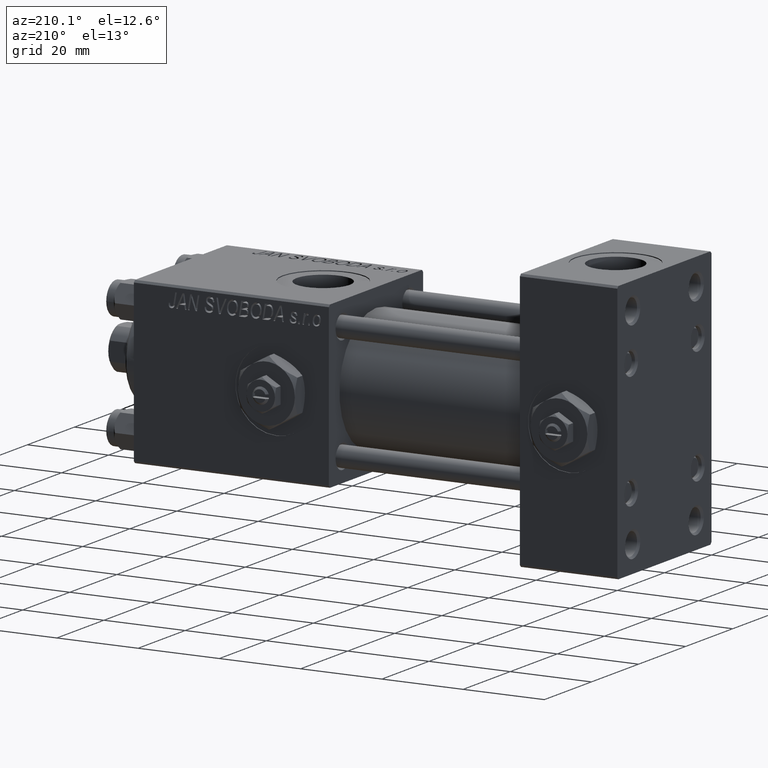
[diagram: clean part render]
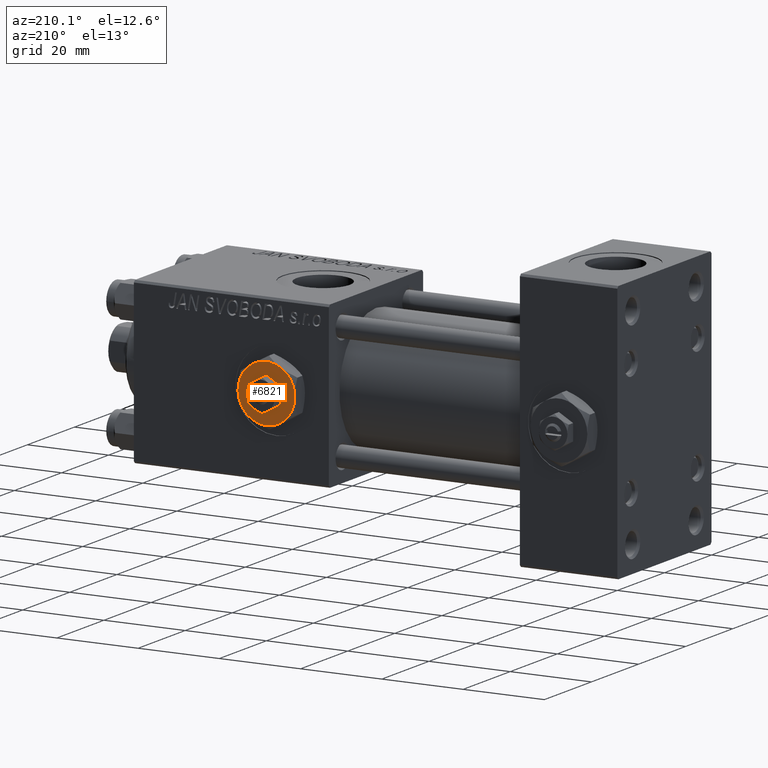
[diagram: same view with one face highlighted and labeled with its STEP entity id]
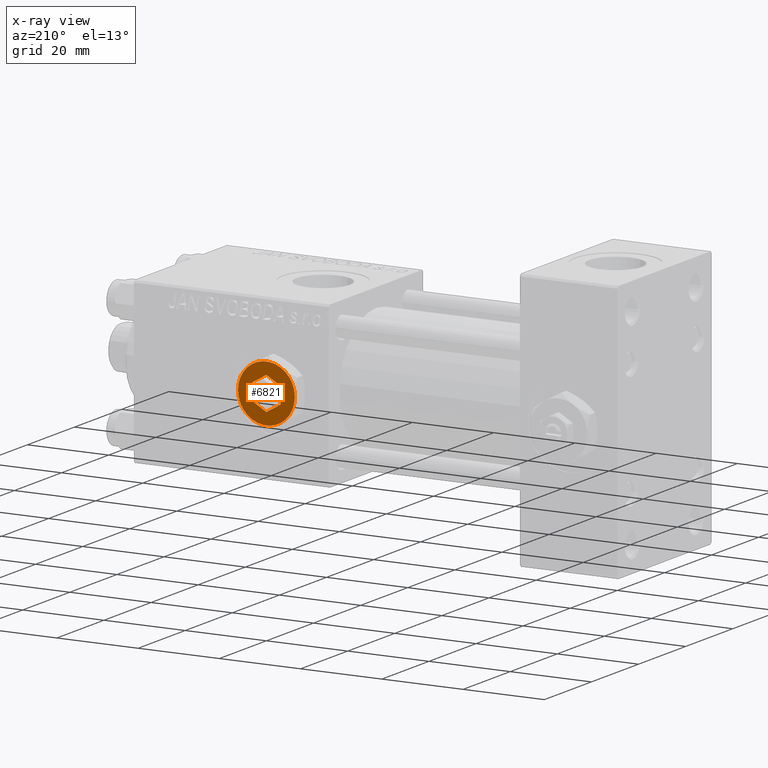
[diagram: x-ray of the same camera — body ghosted, the highlighted face saturated]
A machine part, auxiliary view. The second image highlights one B-rep face of the part: STEP entity #6821.
The next image is the same camera in x-ray: the body ghosted, the highlighted face saturated — about 0% of this face is hidden behind the body in this view.
In plain terms, the highlighted planar face has unit normal (0, 1, 0).
Its self-contained STEP definition (entity closure, byte-faithful):
#95 = VERTEX_POINT ( 'NONE', #45975 ) ;
#382 = VECTOR ( 'NONE', #1438, 1000.000000000000114 ) ;
#509 = CARTESIAN_POINT ( 'NONE',  ( -3.499999999999998668, -2.020725942163689837, 4.299999999999999822 ) ) ;
#547 = CARTESIAN_POINT ( 'NONE',  ( -7.000000000000001776, -2.253471898105739040E-15, 4.299999999999999822 ) ) ;
#961 = VECTOR ( 'NONE', #34745, 1000.000000000000114 ) ;
#1143 = VECTOR ( 'NONE', #48527, 1000.000000000000227 ) ;
#1438 = DIRECTION ( 'NONE',  ( -0.8660254037844387076, 0.4999999999999998335, 0.000000000000000000 ) ) ;
#1445 = DIRECTION ( 'NONE',  ( 1.000000000000000000, 0.000000000000000000, 0.000000000000000000 ) ) ;
#1614 = VERTEX_POINT ( 'NONE', #5451 ) ;
#1859 = VERTEX_POINT ( 'NONE', #19427 ) ;
#1941 = EDGE_CURVE ( 'NONE', #7745, #95, #36705, .T. ) ;
#2352 = DIRECTION ( 'NONE',  ( 0.000000000000000000, 0.000000000000000000, 1.000000000000000000 ) ) ;
#2442 = VECTOR ( 'NONE', #16781, 1000.000000000000227 ) ;
#2580 = VERTEX_POINT ( 'NONE', #24198 ) ;
#2746 = LINE ( 'NONE', #18756, #961 ) ;
#3865 = DIRECTION ( 'NONE',  ( 1.000000000000000000, 0.000000000000000000, 0.000000000000000000 ) ) ;
#4206 = CARTESIAN_POINT ( 'NONE',  ( -3.500000000000000888, 6.062177826491073063, 4.299999999999999822 ) ) ;
#5451 = CARTESIAN_POINT ( 'NONE',  ( 3.499999999999998224, 2.020725942163691613, 4.299999999999999822 ) ) ;
#6028 = DIRECTION ( 'NONE',  ( 1.073081856240828196E-16, -1.000000000000000000, 0.000000000000000000 ) ) ;
#6821 = ADVANCED_FACE ( 'NONE', ( #35240, #31561 ), #20014, .T. ) ;
#7022 = DIRECTION ( 'NONE',  ( 1.000000000000000000, 0.000000000000000000, 0.000000000000000000 ) ) ;
#7081 = LINE ( 'NONE', #34357, #28636 ) ;
#7235 = VERTEX_POINT ( 'NONE', #32272 ) ;
#7499 = DIRECTION ( 'NONE',  ( 0.000000000000000000, 0.000000000000000000, 1.000000000000000000 ) ) ;
#7745 = VERTEX_POINT ( 'NONE', #27637 ) ;
#7948 = DIRECTION ( 'NONE',  ( 1.000000000000000000, 0.000000000000000000, -0.000000000000000000 ) ) ;
#10506 = DIRECTION ( 'NONE',  ( 1.000000000000000000, 0.000000000000000000, 0.000000000000000000 ) ) ;
#10516 = CARTESIAN_POINT ( 'NONE',  ( -3.500000000000000000, -6.062177826491073063, 4.299999999999999822 ) ) ;
#11309 = VERTEX_POINT ( 'NONE', #4206 ) ;
#11895 = EDGE_CURVE ( 'NONE', #95, #1859, #2746, .T. ) ;
#11997 = DIRECTION ( 'NONE',  ( 0.000000000000000000, 0.000000000000000000, 1.000000000000000000 ) ) ;
#12361 = EDGE_CURVE ( 'NONE', #13368, #11309, #38700, .T. ) ;
#12408 = EDGE_CURVE ( 'NONE', #2580, #7745, #7081, .T. ) ;
#12705 = EDGE_CURVE ( 'NONE', #11309, #16115, #14430, .T. ) ;
#13248 = CARTESIAN_POINT ( 'NONE',  ( 3.499999999999998224, 2.020725942163691613, 4.299999999999999822 ) ) ;
#13257 = CARTESIAN_POINT ( 'NONE',  ( 0.000000000000000000, 0.000000000000000000, 4.299999999999999822 ) ) ;
#13368 = VERTEX_POINT ( 'NONE', #36428 ) ;
#14430 = CIRCLE ( 'NONE', #37858, 7.000000000000001776 ) ;
#15679 = CARTESIAN_POINT ( 'NONE',  ( 0.000000000000000000, 0.000000000000000000, 4.299999999999999822 ) ) ;
#16115 = VERTEX_POINT ( 'NONE', #547 ) ;
#16419 = DIRECTION ( 'NONE',  ( -3.219245568722483357E-16, 1.000000000000000000, 0.000000000000000000 ) ) ;
#16781 = DIRECTION ( 'NONE',  ( 0.8660254037844385966, -0.4999999999999998890, 0.000000000000000000 ) ) ;
#17750 = AXIS2_PLACEMENT_3D ( 'NONE', #22037, #2352, #10506 ) ;
#18598 = ORIENTED_EDGE ( 'NONE', *, *, #47952, .F. ) ;
#18756 = CARTESIAN_POINT ( 'NONE',  ( -2.443687887572056883E-16, -4.041451884327378785, 4.299999999999999822 ) ) ;
#19427 = CARTESIAN_POINT ( 'NONE',  ( 3.500000000000000000, -2.020725942163690281, 4.299999999999999822 ) ) ;
#20014 = PLANE ( 'NONE',  #29409 ) ;
#20088 = DIRECTION ( 'NONE',  ( 1.000000000000000000, 0.000000000000000000, 0.000000000000000000 ) ) ;
#21403 = CARTESIAN_POINT ( 'NONE',  ( 0.000000000000000000, 0.000000000000000000, 4.299999999999999822 ) ) ;
#22037 = CARTESIAN_POINT ( 'NONE',  ( 0.000000000000000000, 0.000000000000000000, 4.299999999999999822 ) ) ;
#22544 = CIRCLE ( 'NONE', #40968, 7.000000000000001776 ) ;
#22582 = AXIS2_PLACEMENT_3D ( 'NONE', #15679, #11997, #3865 ) ;
#22922 = VECTOR ( 'NONE', #16419, 1000.000000000000000 ) ;
#23231 = EDGE_LOOP ( 'NONE', ( #35726, #18598, #29503, #27669, #31802, #24655 ) ) ;
#23364 = EDGE_LOOP ( 'NONE', ( #49086, #36039, #39168, #33941, #26214, #28783 ) ) ;
#24198 = CARTESIAN_POINT ( 'NONE',  ( -3.499999999999999112, 2.020725942163690725, 4.299999999999999822 ) ) ;
#24376 = CIRCLE ( 'NONE', #36913, 7.000000000000001776 ) ;
#24655 = ORIENTED_EDGE ( 'NONE', *, *, #12408, .F. ) ;
#26214 = ORIENTED_EDGE ( 'NONE', *, *, #30438, .T. ) ;
#26959 = CARTESIAN_POINT ( 'NONE',  ( 0.000000000000000000, 0.000000000000000000, 4.299999999999999822 ) ) ;
#27637 = CARTESIAN_POINT ( 'NONE',  ( -3.499999999999998668, -2.020725942163689837, 4.299999999999999822 ) ) ;
#27669 = ORIENTED_EDGE ( 'NONE', *, *, #11895, .F. ) ;
#28589 = EDGE_CURVE ( 'NONE', #7235, #13368, #32639, .T. ) ;
#28636 = VECTOR ( 'NONE', #6028, 1000.000000000000000 ) ;
#28783 = ORIENTED_EDGE ( 'NONE', *, *, #35283, .T. ) ;
#29259 = DIRECTION ( 'NONE',  ( 0.000000000000000000, 0.000000000000000000, 1.000000000000000000 ) ) ;
#29409 = AXIS2_PLACEMENT_3D ( 'NONE', #51030, #51790, #7948 ) ;
#29503 = ORIENTED_EDGE ( 'NONE', *, *, #44101, .F. ) ;
#30438 = EDGE_CURVE ( 'NONE', #16115, #45649, #22544, .T. ) ;
#31561 = FACE_BOUND ( 'NONE', #23231, .T. ) ;
#31802 = ORIENTED_EDGE ( 'NONE', *, *, #1941, .F. ) ;
#32272 = CARTESIAN_POINT ( 'NONE',  ( 6.999999999999994671, 3.004629197474313724E-15, 4.299999999999999822 ) ) ;
#32639 = CIRCLE ( 'NONE', #22582, 7.000000000000001776 ) ;
#33059 = CARTESIAN_POINT ( 'NONE',  ( 3.500000000000000888, -6.062177826491073951, 4.299999999999999822 ) ) ;
#33483 = CARTESIAN_POINT ( 'NONE',  ( 0.000000000000000000, 4.041451884327380562, 4.299999999999999822 ) ) ;
#33777 = DIRECTION ( 'NONE',  ( 0.000000000000000000, 0.000000000000000000, 1.000000000000000000 ) ) ;
#33941 = ORIENTED_EDGE ( 'NONE', *, *, #12705, .T. ) ;
#34357 = CARTESIAN_POINT ( 'NONE',  ( -3.499999999999999112, 2.020725942163690725, 4.299999999999999822 ) ) ;
#34745 = DIRECTION ( 'NONE',  ( 0.8660254037844388186, 0.4999999999999996669, 0.000000000000000000 ) ) ;
#35240 = FACE_OUTER_BOUND ( 'NONE', #23364, .T. ) ;
#35283 = EDGE_CURVE ( 'NONE', #45649, #48562, #24376, .T. ) ;
#35726 = ORIENTED_EDGE ( 'NONE', *, *, #45732, .F. ) ;
#36039 = ORIENTED_EDGE ( 'NONE', *, *, #28589, .T. ) ;
#36428 = CARTESIAN_POINT ( 'NONE',  ( 3.500000000000000444, 6.062177826491073063, 4.299999999999999822 ) ) ;
#36705 = LINE ( 'NONE', #509, #2442 ) ;
#36867 = LINE ( 'NONE', #40028, #22922 ) ;
#36913 = AXIS2_PLACEMENT_3D ( 'NONE', #13257, #29259, #37132 ) ;
#37132 = DIRECTION ( 'NONE',  ( 1.000000000000000000, 0.000000000000000000, 0.000000000000000000 ) ) ;
#37252 = AXIS2_PLACEMENT_3D ( 'NONE', #47662, #7499, #20088 ) ;
#37388 = DIRECTION ( 'NONE',  ( 0.000000000000000000, 0.000000000000000000, 1.000000000000000000 ) ) ;
#37858 = AXIS2_PLACEMENT_3D ( 'NONE', #26959, #33777, #7022 ) ;
#38700 = CIRCLE ( 'NONE', #17750, 7.000000000000001776 ) ;
#39168 = ORIENTED_EDGE ( 'NONE', *, *, #12361, .T. ) ;
#40028 = CARTESIAN_POINT ( 'NONE',  ( 3.499999999999999556, -2.020725942163690281, 4.299999999999999822 ) ) ;
#40968 = AXIS2_PLACEMENT_3D ( 'NONE', #21403, #37388, #1445 ) ;
#41327 = LINE ( 'NONE', #13248, #382 ) ;
#42322 = CIRCLE ( 'NONE', #37252, 7.000000000000001776 ) ;
#43799 = LINE ( 'NONE', #44314, #1143 ) ;
#44101 = EDGE_CURVE ( 'NONE', #1859, #1614, #36867, .T. ) ;
#44314 = CARTESIAN_POINT ( 'NONE',  ( 0.000000000000000000, 4.041451884327380562, 4.299999999999999822 ) ) ;
#45649 = VERTEX_POINT ( 'NONE', #10516 ) ;
#45732 = EDGE_CURVE ( 'NONE', #46876, #2580, #43799, .T. ) ;
#45975 = CARTESIAN_POINT ( 'NONE',  ( -2.443687887572056883E-16, -4.041451884327378785, 4.299999999999999822 ) ) ;
#46876 = VERTEX_POINT ( 'NONE', #33483 ) ;
#47662 = CARTESIAN_POINT ( 'NONE',  ( 0.000000000000000000, 0.000000000000000000, 4.299999999999999822 ) ) ;
#47817 = EDGE_CURVE ( 'NONE', #48562, #7235, #42322, .T. ) ;
#47952 = EDGE_CURVE ( 'NONE', #1614, #46876, #41327, .T. ) ;
#48527 = DIRECTION ( 'NONE',  ( -0.8660254037844385966, -0.4999999999999998890, 0.000000000000000000 ) ) ;
#48562 = VERTEX_POINT ( 'NONE', #33059 ) ;
#49086 = ORIENTED_EDGE ( 'NONE', *, *, #47817, .T. ) ;
#51030 = CARTESIAN_POINT ( 'NONE',  ( 0.000000000000000000, 0.000000000000000000, 4.299999999999999822 ) ) ;
#51790 = DIRECTION ( 'NONE',  ( 0.000000000000000000, 0.000000000000000000, 1.000000000000000000 ) ) ;